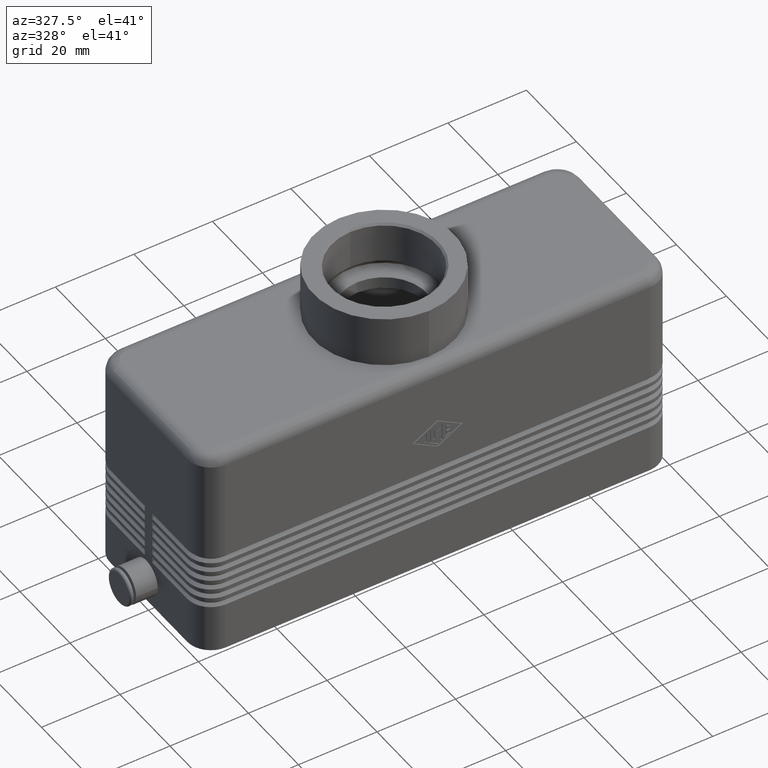
[diagram: clean part render]
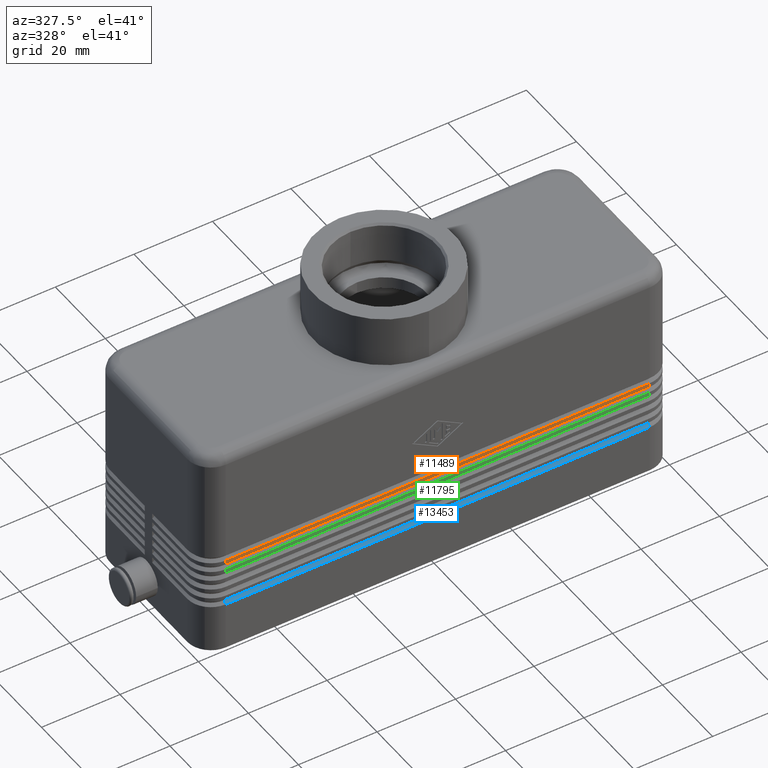
[diagram: same view with three faces highlighted in distinct colors, each labeled with its STEP entity id]
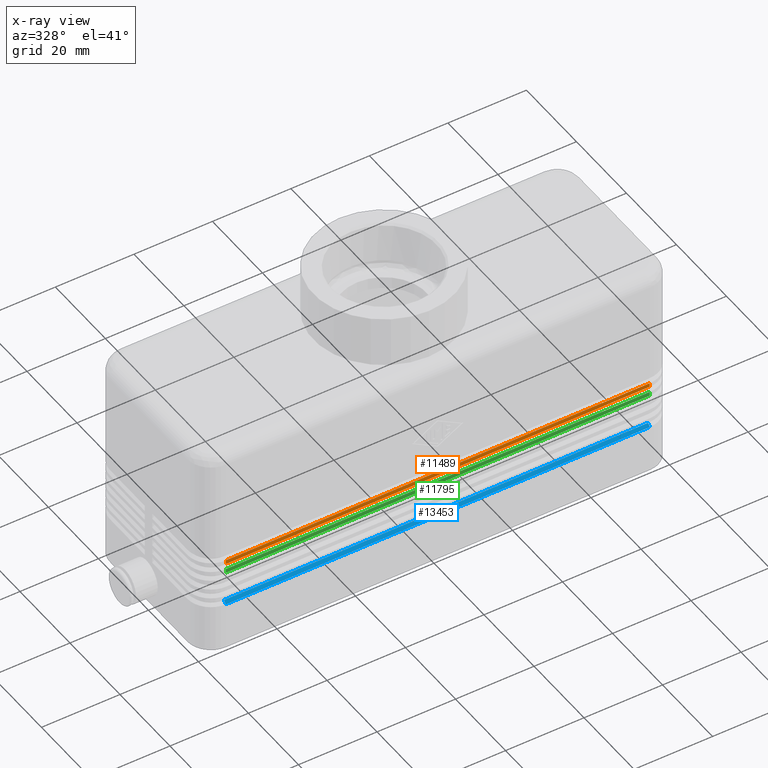
[diagram: x-ray of the same camera — body ghosted, the three highlighted faces saturated]
A machine part, auxiliary view with three faces highlighted in distinct colors.
The next image is the same camera in x-ray (body ghosted, the three faces saturated) — at least one of them is partly hidden behind the body in this view.
Their STEP definitions:

[orange] entity #11489 — the highlighted planar face has unit normal (0, 1, 0).
#1439=CARTESIAN_POINT('',(-53.999999999999986,-21.500000000000000,23.750000000000004));
#1440=VERTEX_POINT('',#1439);
#1731=CARTESIAN_POINT('',(-53.999999999999986,-21.500000000000000,24.750000000000021));
#1732=VERTEX_POINT('',#1731);
#1733=CARTESIAN_POINT('',(-53.999999999999986,-21.500000000000000,23.750000000000004));
#1734=DIRECTION('',(0.0,0.0,1.0));
#1735=VECTOR('',#1734,1.000000000000018);
#1736=LINE('',#1733,#1735);
#1737=EDGE_CURVE('',#1440,#1732,#1736,.T.);
#1762=CARTESIAN_POINT('',(54.0,-21.500000000000000,24.750000000000011));
#1763=VERTEX_POINT('',#1762);
#1771=CARTESIAN_POINT('',(54.0,-21.500000000000000,23.750000000000004));
#1772=VERTEX_POINT('',#1771);
#1773=CARTESIAN_POINT('',(54.0,-21.500000000000000,24.750000000000011));
#1774=DIRECTION('',(0.0,0.0,-1.0));
#1775=VECTOR('',#1774,1.000000000000007);
#1776=LINE('',#1773,#1775);
#1777=EDGE_CURVE('',#1763,#1772,#1776,.T.);
#11397=CARTESIAN_POINT('',(-53.999999999999986,-21.500000000000000,24.750000000000021));
#11398=DIRECTION('',(1.0,0.0,0.0));
#11399=VECTOR('',#11398,107.999999999999990);
#11400=LINE('',#11397,#11399);
#11401=EDGE_CURVE('',#1732,#1763,#11400,.T.);
#11473=CARTESIAN_POINT('',(-1.110223E-015,-21.500000000000000,27.499999999999993));
#11474=DIRECTION('',(0.0,1.0,0.0));
#11475=DIRECTION('',(0.0,0.0,1.0));
#11476=AXIS2_PLACEMENT_3D('',#11473,#11474,#11475);
#11477=PLANE('',#11476);
#11478=ORIENTED_EDGE('',*,*,#11401,.F.);
#11479=ORIENTED_EDGE('',*,*,#1737,.F.);
#11480=CARTESIAN_POINT('',(54.0,-21.500000000000000,23.750000000000004));
#11481=DIRECTION('',(-1.0,0.0,0.0));
#11482=VECTOR('',#11481,107.999999999999990);
#11483=LINE('',#11480,#11482);
#11484=EDGE_CURVE('',#1772,#1440,#11483,.T.);
#11485=ORIENTED_EDGE('',*,*,#11484,.F.);
#11486=ORIENTED_EDGE('',*,*,#1777,.F.);
#11487=EDGE_LOOP('',(#11478,#11479,#11485,#11486));
#11488=FACE_OUTER_BOUND('',#11487,.T.);
#11489=ADVANCED_FACE('',(#11488),#11477,.F.);

[blue] entity #13453 — the highlighted planar face has unit normal (0, -0.7071, 0.7071).
#557=CARTESIAN_POINT('',(-53.999999999999993,-21.500000000000000,12.250000000000023));
#558=VERTEX_POINT('',#557);
#590=CARTESIAN_POINT('',(54.0,-21.500000000000000,12.250000000000005));
#591=VERTEX_POINT('',#590);
#630=CARTESIAN_POINT('',(54.000000000000014,-20.799999999999986,12.950000000000003));
#631=VERTEX_POINT('',#630);
#639=CARTESIAN_POINT('',(54.0,-21.500000000000000,12.250000000000005));
#640=DIRECTION('',(1.435513E-014,0.707106781186556,0.707106781186539));
#641=VECTOR('',#640,0.989949493661174);
#642=LINE('',#639,#641);
#643=EDGE_CURVE('',#591,#631,#642,.T.);
#13414=CARTESIAN_POINT('',(-53.999999999999993,-20.800000000000018,12.950000000000003));
#13415=VERTEX_POINT('',#13414);
#13416=CARTESIAN_POINT('',(-53.999999999999993,-21.500000000000000,12.250000000000023));
#13417=DIRECTION('',(0.0,0.707106781186548,0.707106781186547));
#13418=VECTOR('',#13417,0.989949493661139);
#13419=LINE('',#13416,#13418);
#13420=EDGE_CURVE('',#558,#13415,#13419,.T.);
#13432=CARTESIAN_POINT('',(4.718448E-015,-21.150000000000002,12.600000000000005));
#13433=DIRECTION('',(3.047225E-034,-0.707106781186548,0.707106781186548));
#13434=DIRECTION('',(1.0,0.0,0.0));
#13435=AXIS2_PLACEMENT_3D('',#13432,#13433,#13434);
#13436=PLANE('',#13435);
#13437=ORIENTED_EDGE('',*,*,#643,.T.);
#13438=CARTESIAN_POINT('',(54.000000000000014,-20.799999999999986,12.950000000000003));
#13439=DIRECTION('',(-1.0,0.0,0.0));
#13440=VECTOR('',#13439,108.0);
#13441=LINE('',#13438,#13440);
#13442=EDGE_CURVE('',#631,#13415,#13441,.T.);
#13443=ORIENTED_EDGE('',*,*,#13442,.T.);
#13444=ORIENTED_EDGE('',*,*,#13420,.F.);
#13445=CARTESIAN_POINT('',(-53.999999999999993,-21.500000000000000,12.250000000000023));
#13446=DIRECTION('',(1.0,0.0,0.0));
#13447=VECTOR('',#13446,108.0);
#13448=LINE('',#13445,#13447);
#13449=EDGE_CURVE('',#558,#591,#13448,.T.);
#13450=ORIENTED_EDGE('',*,*,#13449,.T.);
#13451=EDGE_LOOP('',(#13437,#13443,#13444,#13450));
#13452=FACE_OUTER_BOUND('',#13451,.T.);
#13453=ADVANCED_FACE('',(#13452),#13436,.T.);

[green] entity #11795 — the highlighted planar face has unit normal (0, 1, 0).
#1211=CARTESIAN_POINT('',(-53.999999999999986,-21.500000000000000,21.250000000000004));
#1212=VERTEX_POINT('',#1211);
#1471=CARTESIAN_POINT('',(-53.999999999999986,-21.500000000000000,22.250000000000021));
#1472=VERTEX_POINT('',#1471);
#1473=CARTESIAN_POINT('',(-53.999999999999986,-21.500000000000000,21.250000000000004));
#1474=DIRECTION('',(0.0,0.0,1.0));
#1475=VECTOR('',#1474,1.000000000000018);
#1476=LINE('',#1473,#1475);
#1477=EDGE_CURVE('',#1212,#1472,#1476,.T.);
#1502=CARTESIAN_POINT('',(54.0,-21.500000000000000,22.250000000000011));
#1503=VERTEX_POINT('',#1502);
#1511=CARTESIAN_POINT('',(54.0,-21.500000000000000,21.250000000000004));
#1512=VERTEX_POINT('',#1511);
#1513=CARTESIAN_POINT('',(54.0,-21.500000000000000,22.250000000000011));
#1514=DIRECTION('',(0.0,0.0,-1.0));
#1515=VECTOR('',#1514,1.000000000000007);
#1516=LINE('',#1513,#1515);
#1517=EDGE_CURVE('',#1503,#1512,#1516,.T.);
#11703=CARTESIAN_POINT('',(-53.999999999999986,-21.500000000000000,22.250000000000021));
#11704=DIRECTION('',(1.0,0.0,0.0));
#11705=VECTOR('',#11704,107.999999999999990);
#11706=LINE('',#11703,#11705);
#11707=EDGE_CURVE('',#1472,#1503,#11706,.T.);
#11779=CARTESIAN_POINT('',(-1.110223E-015,-21.500000000000000,27.499999999999993));
#11780=DIRECTION('',(0.0,1.0,0.0));
#11781=DIRECTION('',(0.0,0.0,1.0));
#11782=AXIS2_PLACEMENT_3D('',#11779,#11780,#11781);
#11783=PLANE('',#11782);
#11784=ORIENTED_EDGE('',*,*,#11707,.F.);
#11785=ORIENTED_EDGE('',*,*,#1477,.F.);
#11786=CARTESIAN_POINT('',(54.0,-21.500000000000000,21.250000000000004));
#11787=DIRECTION('',(-1.0,0.0,0.0));
#11788=VECTOR('',#11787,107.999999999999990);
#11789=LINE('',#11786,#11788);
#11790=EDGE_CURVE('',#1512,#1212,#11789,.T.);
#11791=ORIENTED_EDGE('',*,*,#11790,.F.);
#11792=ORIENTED_EDGE('',*,*,#1517,.F.);
#11793=EDGE_LOOP('',(#11784,#11785,#11791,#11792));
#11794=FACE_OUTER_BOUND('',#11793,.T.);
#11795=ADVANCED_FACE('',(#11794),#11783,.F.);